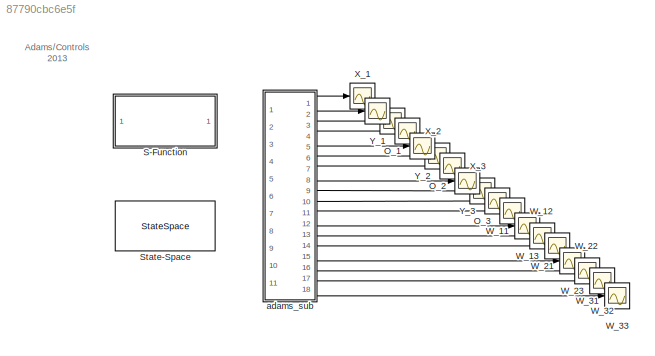
MODEL slx_87790cbc6e5f
KIND model
BLOCK [Scope] O_1 
  Floating = off
  NumInputPorts = 1
  Ports = [1]
  ShowLegends = off
BLOCK [Scope] O_2 
  Floating = off
  NumInputPorts = 1
  Ports = [1]
  ShowLegends = off
BLOCK [Scope] O_3 
  Floating = off
  NumInputPorts = 1
  Ports = [1]
  ShowLegends = off
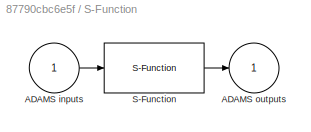
BLOCK [SubSystem] S-Function
  InitFcn = clear mex
  LoadFcn = %check based on dialog box setting for when setting by popup menu                                             \nif exist('ADAMS_solver_type')                                                                                 \n  if strcmp(ADAMS_solver_type,'C++')                                                                          \n    set_param(gcb,'exetyp','C++');                                 ...<+3488ch>
  OpenFcn = open_system(gcb,'mask')                                                                                                                          \nif not(exist('set_some_params_states'))                                                                                                          \n                                                                                                            ...<+625ch>
  Ports = [1, 1]
  RequestExecContextInheritance = off
BLOCK [Inport] S-Function/ADAMS inputs
  IconDisplay = Port number
BLOCK [Outport] S-Function/ADAMS outputs
  IconDisplay = Port number
  InitialOutput = 0
BLOCK [S-Function] S-Function/S-Function
  EnableBusSupport = off
  FunctionName = adams_plant
  Parameters = exevie,exesol,stat,outfil,nampre,o_rate,nam_in,namout,dft,modsim,modani,dt_out,inicmd,exetyp,comtyp,ada_host, workdir,pin_interp_order,pout_extrap_order,pin_extrap_order,pout_interp_order,simulink_lead_cosim
  Ports = [1, 1]
  StopFcn = clear mex
BLOCK [StateSpace] State-Space
  A = ADAMS_a
  B = ADAMS_b
  C = ADAMS_c
  D = ADAMS_d
  Ports = [1, 1]
  X0 = 0
BLOCK [Scope] W_11
  Floating = off
  NumInputPorts = 1
  Ports = [1]
  ShowLegends = off
BLOCK [Scope] W_12
  Floating = off
  NumInputPorts = 1
  Ports = [1]
  ShowLegends = off
BLOCK [Scope] W_13
  Floating = off
  NumInputPorts = 1
  Ports = [1]
  ShowLegends = off
BLOCK [Scope] W_21
  Floating = off
  NumInputPorts = 1
  Ports = [1]
  ShowLegends = off
BLOCK [Scope] W_22
  Floating = off
  NumInputPorts = 1
  Ports = [1]
  ShowLegends = off
BLOCK [Scope] W_23
  Floating = off
  NumInputPorts = 1
  Ports = [1]
  ShowLegends = off
BLOCK [Scope] W_31
  Floating = off
  NumInputPorts = 1
  Ports = [1]
  ShowLegends = off
BLOCK [Scope] W_32
  Floating = off
  NumInputPorts = 1
  Ports = [1]
  ShowLegends = off
BLOCK [Scope] W_33
  Floating = off
  NumInputPorts = 1
  Ports = [1]
  ShowLegends = off
BLOCK [Scope] X_1 
  Floating = off
  NumInputPorts = 1
  Ports = [1]
  ShowLegends = off
BLOCK [Scope] X_2 
  Floating = off
  NumInputPorts = 1
  Ports = [1]
  ShowLegends = off
BLOCK [Scope] X_3 
  Floating = off
  NumInputPorts = 1
  Ports = [1]
  ShowLegends = off
BLOCK [Scope] Y_1 
  Floating = off
  NumInputPorts = 1
  Ports = [1]
  ShowLegends = off
BLOCK [Scope] Y_2 
  Floating = off
  NumInputPorts = 1
  Ports = [1]
  ShowLegends = off
BLOCK [Scope] Y_3 
  Floating = off
  NumInputPorts = 1
  Ports = [1]
  ShowLegends = off
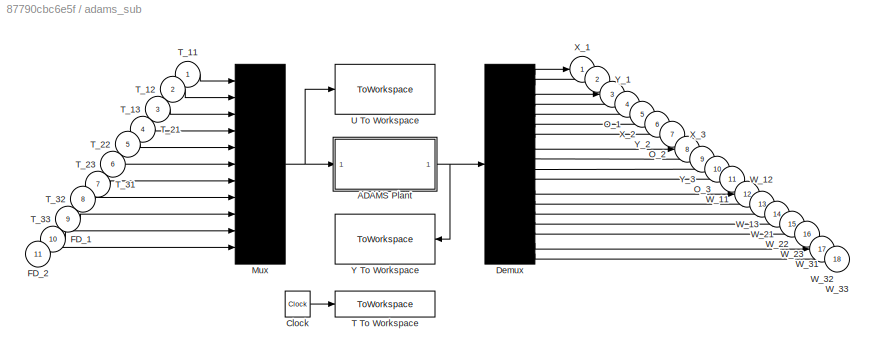
BLOCK [SubSystem] adams_sub
  Ports = [11, 18]
  RequestExecContextInheritance = off
  ShowPortLabels = none
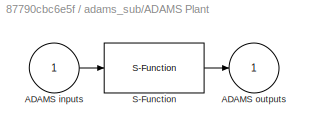
BLOCK [SubSystem] adams_sub/ADAMS Plant
  InitFcn = clear mex
  LoadFcn = %check based on dialog box setting for when setting by popup menu                                             \nif exist('ADAMS_solver_type')                                                                                 \n  if strcmp(ADAMS_solver_type,'C++')                                                                          \n    set_param(gcb,'exetyp','C++');                                 ...<+3488ch>
  OpenFcn = open_system(gcb,'mask')                                                                                                                          \nif not(exist('set_some_params_states'))                                                                                                          \n                                                                                                            ...<+625ch>
  Ports = [1, 1]
  RequestExecContextInheritance = off
BLOCK [Inport] adams_sub/ADAMS Plant/ADAMS inputs
  IconDisplay = Port number
BLOCK [Outport] adams_sub/ADAMS Plant/ADAMS outputs
  IconDisplay = Port number
  InitialOutput = 0
BLOCK [S-Function] adams_sub/ADAMS Plant/S-Function
  EnableBusSupport = off
  FunctionName = adams_plant
  Parameters = exevie,exesol,stat,outfil,nampre,o_rate,nam_in,namout,dft,modsim,modani,dt_out,inicmd,exetyp,comtyp,ada_host, workdir,pin_interp_order,pout_extrap_order,pin_extrap_order,pout_interp_order,simulink_lead_cosim
  Ports = [1, 1]
  StopFcn = clear mex
BLOCK [Clock] adams_sub/Clock
BLOCK [Demux] adams_sub/Demux
  Outputs = 18
  Ports = [1, 18]
BLOCK [Inport] adams_sub/FD_1
  IconDisplay = Port number
  Port = 10
BLOCK [Inport] adams_sub/FD_2
  IconDisplay = Port number
  Port = 11
BLOCK [Mux] adams_sub/Mux
  Inputs = 11
  Ports = [11, 1]
BLOCK [Outport] adams_sub/O_1 
  IconDisplay = Port number
  Port = 3
BLOCK [Outport] adams_sub/O_2 
  IconDisplay = Port number
  Port = 6
BLOCK [Outport] adams_sub/O_3 
  IconDisplay = Port number
  Port = 9
BLOCK [ToWorkspace] adams_sub/T To Workspace
  MaxDataPoints = 100000
  Ports = [1]
  VariableName = ADAMS_tout
BLOCK [Inport] adams_sub/T_11
  IconDisplay = Port number
BLOCK [Inport] adams_sub/T_12
  IconDisplay = Port number
  Port = 2
BLOCK [Inport] adams_sub/T_13
  IconDisplay = Port number
  Port = 3
BLOCK [Inport] adams_sub/T_21
  IconDisplay = Port number
  Port = 4
BLOCK [Inport] adams_sub/T_22
  IconDisplay = Port number
  Port = 5
BLOCK [Inport] adams_sub/T_23
  IconDisplay = Port number
  Port = 6
BLOCK [Inport] adams_sub/T_31
  IconDisplay = Port number
  Port = 7
BLOCK [Inport] adams_sub/T_32
  IconDisplay = Port number
  Port = 8
BLOCK [Inport] adams_sub/T_33
  IconDisplay = Port number
  Port = 9
BLOCK [ToWorkspace] adams_sub/U To Workspace
  MaxDataPoints = 100000
  Ports = [1]
  VariableName = ADAMS_uout
BLOCK [Outport] adams_sub/W_11
  IconDisplay = Port number
  Port = 10
BLOCK [Outport] adams_sub/W_12
  IconDisplay = Port number
  Port = 11
BLOCK [Outport] adams_sub/W_13
  IconDisplay = Port number
  Port = 12
BLOCK [Outport] adams_sub/W_21
  IconDisplay = Port number
  Port = 13
BLOCK [Outport] adams_sub/W_22
  IconDisplay = Port number
  Port = 14
BLOCK [Outport] adams_sub/W_23
  IconDisplay = Port number
  Port = 15
BLOCK [Outport] adams_sub/W_31
  IconDisplay = Port number
  Port = 16
BLOCK [Outport] adams_sub/W_32
  IconDisplay = Port number
  Port = 17
BLOCK [Outport] adams_sub/W_33
  IconDisplay = Port number
  Port = 18
BLOCK [Outport] adams_sub/X_1 
  IconDisplay = Port number
BLOCK [Outport] adams_sub/X_2 
  IconDisplay = Port number
  Port = 4
BLOCK [Outport] adams_sub/X_3 
  IconDisplay = Port number
  Port = 7
BLOCK [ToWorkspace] adams_sub/Y To Workspace
  MaxDataPoints = 100000
  Ports = [1]
  VariableName = ADAMS_yout
BLOCK [Outport] adams_sub/Y_1 
  IconDisplay = Port number
  Port = 2
BLOCK [Outport] adams_sub/Y_2 
  IconDisplay = Port number
  Port = 5
BLOCK [Outport] adams_sub/Y_3 
  IconDisplay = Port number
  Port = 8
ANNOTATION (root): Adams/Controls 2013
LINE S-Function/ADAMS inputs:1 -> S-Function/S-Function:1
LINE S-Function/S-Function:1 -> S-Function/ADAMS outputs:1
LINE adams_sub/ADAMS Plant/ADAMS inputs:1 -> adams_sub/ADAMS Plant/S-Function:1
LINE adams_sub/ADAMS Plant/S-Function:1 -> adams_sub/ADAMS Plant/ADAMS outputs:1
NET adams_sub/ADAMS Plant:1 -> adams_sub/Demux:1, adams_sub/Y To Workspace:1
LINE adams_sub/Clock:1 -> adams_sub/T To Workspace:1
LINE adams_sub/Demux:1 -> adams_sub/X_1 :1
LINE adams_sub/Demux:10 -> adams_sub/W_11:1
LINE adams_sub/Demux:11 -> adams_sub/W_12:1
LINE adams_sub/Demux:12 -> adams_sub/W_13:1
LINE adams_sub/Demux:13 -> adams_sub/W_21:1
LINE adams_sub/Demux:14 -> adams_sub/W_22:1
LINE adams_sub/Demux:15 -> adams_sub/W_23:1
LINE adams_sub/Demux:16 -> adams_sub/W_31:1
LINE adams_sub/Demux:17 -> adams_sub/W_32:1
LINE adams_sub/Demux:18 -> adams_sub/W_33:1
LINE adams_sub/Demux:2 -> adams_sub/Y_1 :1
LINE adams_sub/Demux:3 -> adams_sub/O_1 :1
LINE adams_sub/Demux:4 -> adams_sub/X_2 :1
LINE adams_sub/Demux:5 -> adams_sub/Y_2 :1
LINE adams_sub/Demux:6 -> adams_sub/O_2 :1
LINE adams_sub/Demux:7 -> adams_sub/X_3 :1
LINE adams_sub/Demux:8 -> adams_sub/Y_3 :1
LINE adams_sub/Demux:9 -> adams_sub/O_3 :1
LINE adams_sub/FD_1:1 -> adams_sub/Mux:10
LINE adams_sub/FD_2:1 -> adams_sub/Mux:11
NET adams_sub/Mux:1 -> adams_sub/ADAMS Plant:1, adams_sub/U To Workspace:1
LINE adams_sub/T_11:1 -> adams_sub/Mux:1
LINE adams_sub/T_12:1 -> adams_sub/Mux:2
LINE adams_sub/T_13:1 -> adams_sub/Mux:3
LINE adams_sub/T_21:1 -> adams_sub/Mux:4
LINE adams_sub/T_22:1 -> adams_sub/Mux:5
LINE adams_sub/T_23:1 -> adams_sub/Mux:6
LINE adams_sub/T_31:1 -> adams_sub/Mux:7
LINE adams_sub/T_32:1 -> adams_sub/Mux:8
LINE adams_sub/T_33:1 -> adams_sub/Mux:9
LINE adams_sub:1 -> X_1 :1
LINE adams_sub:10 -> W_11:1
LINE adams_sub:11 -> W_12:1
LINE adams_sub:12 -> W_13:1
LINE adams_sub:13 -> W_21:1
LINE adams_sub:14 -> W_22:1
LINE adams_sub:15 -> W_23:1
LINE adams_sub:16 -> W_31:1
LINE adams_sub:17 -> W_32:1
LINE adams_sub:18 -> W_33:1
LINE adams_sub:2 -> Y_1 :1
LINE adams_sub:3 -> O_1 :1
LINE adams_sub:4 -> X_2 :1
LINE adams_sub:5 -> Y_2 :1
LINE adams_sub:6 -> O_2 :1
LINE adams_sub:7 -> X_3 :1
LINE adams_sub:8 -> Y_3 :1
LINE adams_sub:9 -> O_3 :1
note: NET lines group one-source signal fan-out (src -> all destinations, sorted); 1:1 wires keep LINE
